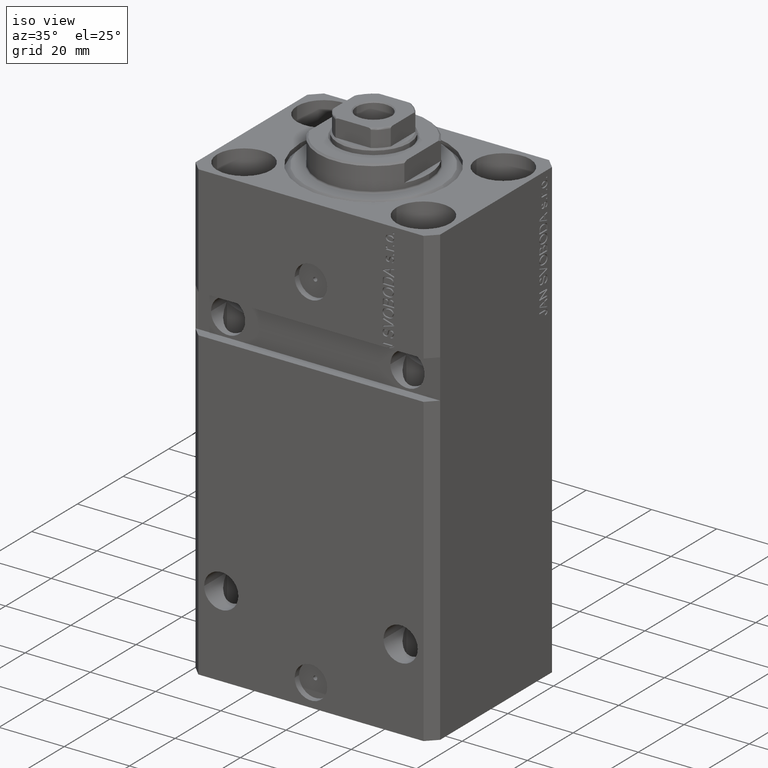
[diagram: clean part render]
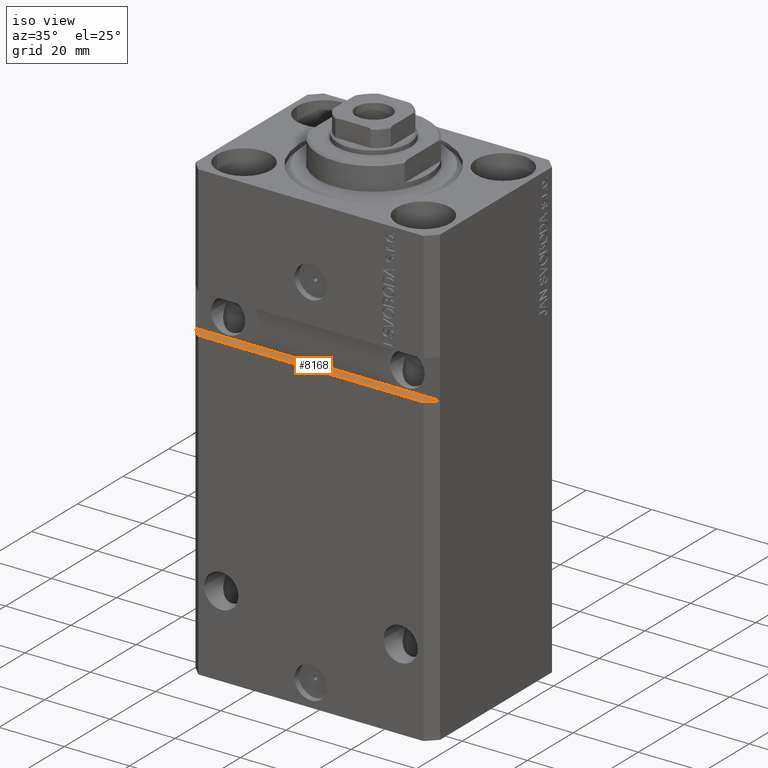
[diagram: same view with one face highlighted and labeled with its STEP entity id]
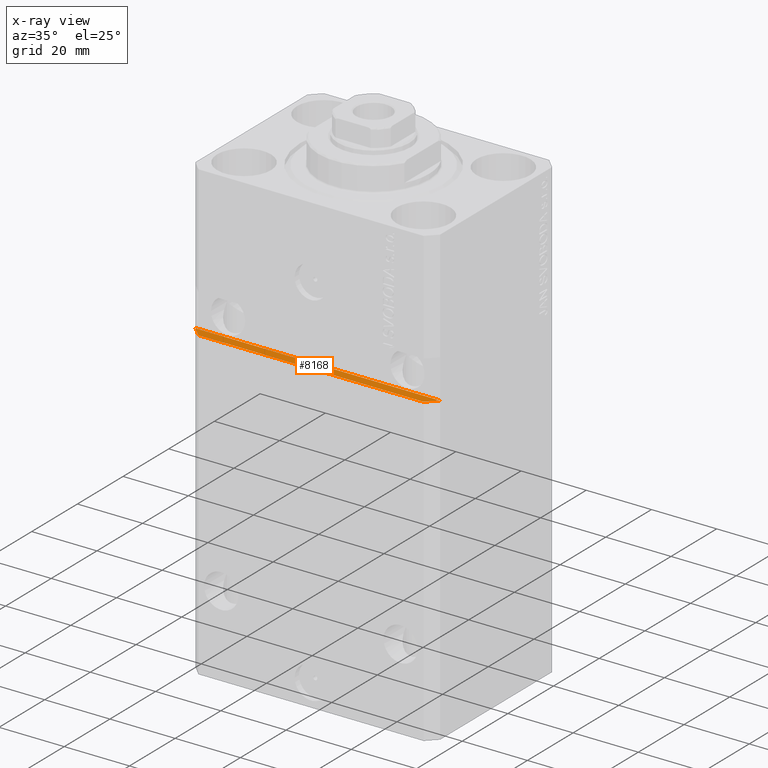
[diagram: x-ray of the same camera — body ghosted, the highlighted face saturated]
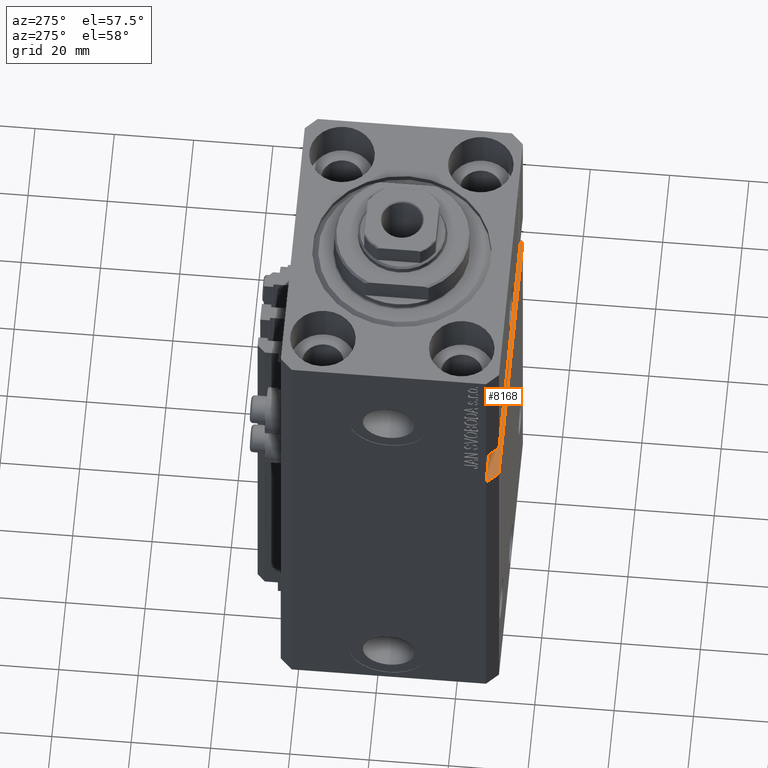
[diagram: same view with one face highlighted and labeled with its STEP entity id]
A machine part, iso view. The second image highlights one B-rep face of the part: STEP entity #8168.
The next image is the same camera in x-ray: the body ghosted, the highlighted face saturated — about 0% of this face is hidden behind the body in this view.
A second angle (auxiliary view) of the same face is appended — the face is thin or edge-on in the first view.
In plain terms, the highlighted planar face has unit normal (0, 0, -1).
Its self-contained STEP definition (entity closure, byte-faithful):
#487 = PLANE ( 'NONE',  #18171 ) ;
#2201 = VECTOR ( 'NONE', #29451, 1000.000000000000000 ) ;
#2903 = DIRECTION ( 'NONE',  ( 0.7071067811865483499, -0.7071067811865466846, 6.542051911182404951E-17 ) ) ;
#5546 = CARTESIAN_POINT ( 'NONE',  ( -37.50000000000000000, -27.50000000000000000, -46.00000000000000000 ) ) ;
#6686 = VECTOR ( 'NONE', #10366, 1000.000000000000114 ) ;
#6720 = LINE ( 'NONE', #14599, #2201 ) ;
#6918 = EDGE_CURVE ( 'NONE', #26361, #34383, #35041, .T. ) ;
#8168 = ADVANCED_FACE ( 'NONE', ( #14610 ), #487, .F. ) ;
#9365 = LINE ( 'NONE', #13193, #43368 ) ;
#10366 = DIRECTION ( 'NONE',  ( 0.7071067811865474617, 0.7071067811865474617, 6.542051911182397555E-17 ) ) ;
#11282 = ORIENTED_EDGE ( 'NONE', *, *, #19023, .T. ) ;
#11889 = ORIENTED_EDGE ( 'NONE', *, *, #29082, .T. ) ;
#13193 = CARTESIAN_POINT ( 'NONE',  ( -37.50000000000000000, -24.49999999999999645, -46.00000000000000000 ) ) ;
#14599 = CARTESIAN_POINT ( 'NONE',  ( -37.50000000000000000, -24.50000000000000000, -46.00000000000000000 ) ) ;
#14610 = FACE_OUTER_BOUND ( 'NONE', #23705, .T. ) ;
#18171 = AXIS2_PLACEMENT_3D ( 'NONE', #26106, #32833, #36174 ) ;
#18232 = VERTEX_POINT ( 'NONE', #42054 ) ;
#19023 = EDGE_CURVE ( 'NONE', #33344, #18232, #9365, .T. ) ;
#23451 = ORIENTED_EDGE ( 'NONE', *, *, #26316, .F. ) ;
#23705 = EDGE_LOOP ( 'NONE', ( #43467, #23451, #11282, #11889 ) ) ;
#26106 = CARTESIAN_POINT ( 'NONE',  ( -37.50000000000000000, -24.50000000000000000, -46.00000000000000000 ) ) ;
#26316 = EDGE_CURVE ( 'NONE', #33344, #34383, #6720, .T. ) ;
#26361 = VERTEX_POINT ( 'NONE', #34220 ) ;
#29062 = VECTOR ( 'NONE', #45776, 1000.000000000000000 ) ;
#29082 = EDGE_CURVE ( 'NONE', #18232, #26361, #38115, .T. ) ;
#29451 = DIRECTION ( 'NONE',  ( 1.000000000000000000, 9.251858538542972814E-17, 9.251858538542972814E-17 ) ) ;
#32833 = DIRECTION ( 'NONE',  ( 9.251858538542972814E-17, 1.088096013778228463E-32, -1.000000000000000000 ) ) ;
#33344 = VERTEX_POINT ( 'NONE', #44556 ) ;
#34220 = CARTESIAN_POINT ( 'NONE',  ( 34.49999999999999289, -27.49999999999999289, -45.99999999999999289 ) ) ;
#34383 = VERTEX_POINT ( 'NONE', #35060 ) ;
#35041 = LINE ( 'NONE', #42453, #6686 ) ;
#35060 = CARTESIAN_POINT ( 'NONE',  ( 37.49999999999999289, -24.49999999999999289, -45.99999999999999289 ) ) ;
#36174 = DIRECTION ( 'NONE',  ( -1.000000000000000000, 0.000000000000000000, -9.251858538542972814E-17 ) ) ;
#38115 = LINE ( 'NONE', #5546, #29062 ) ;
#42054 = CARTESIAN_POINT ( 'NONE',  ( -34.49999999999998579, -27.50000000000000000, -46.00000000000000000 ) ) ;
#42453 = CARTESIAN_POINT ( 'NONE',  ( 34.49999999999998579, -27.50000000000000000, -46.00000000000000000 ) ) ;
#43368 = VECTOR ( 'NONE', #2903, 1000.000000000000114 ) ;
#43467 = ORIENTED_EDGE ( 'NONE', *, *, #6918, .T. ) ;
#44556 = CARTESIAN_POINT ( 'NONE',  ( -37.50000000000000000, -24.50000000000000000, -46.00000000000000000 ) ) ;
#45776 = DIRECTION ( 'NONE',  ( 1.000000000000000000, 9.251858538542972814E-17, 9.251858538542972814E-17 ) ) ;